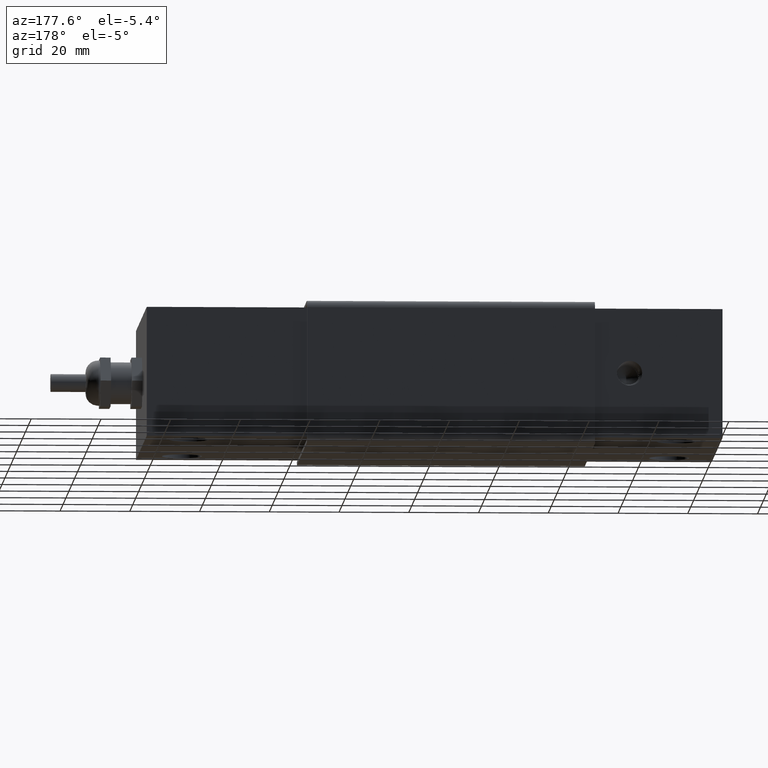
[diagram: clean part render]
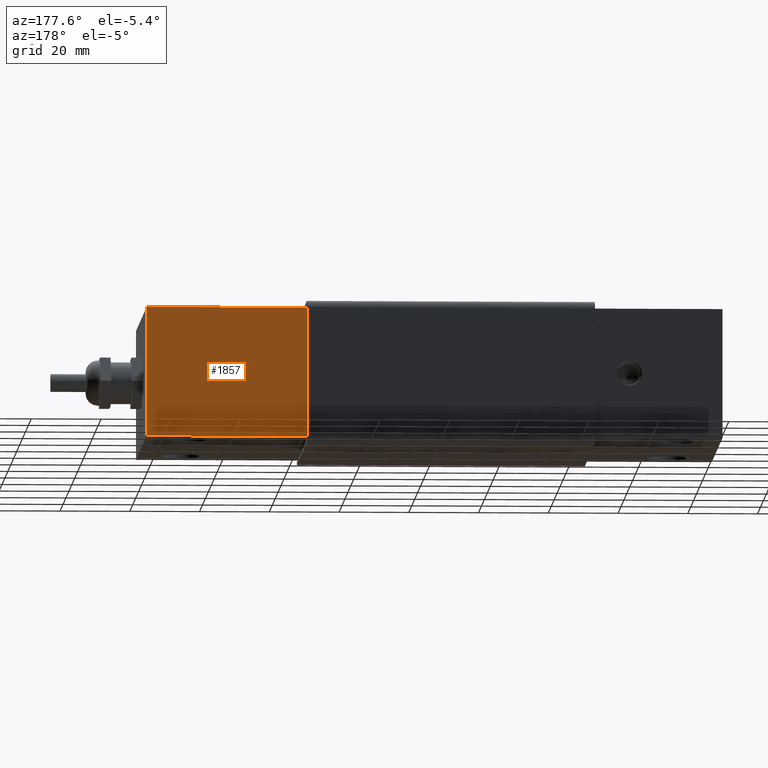
[diagram: same view with one face highlighted and labeled with its STEP entity id]
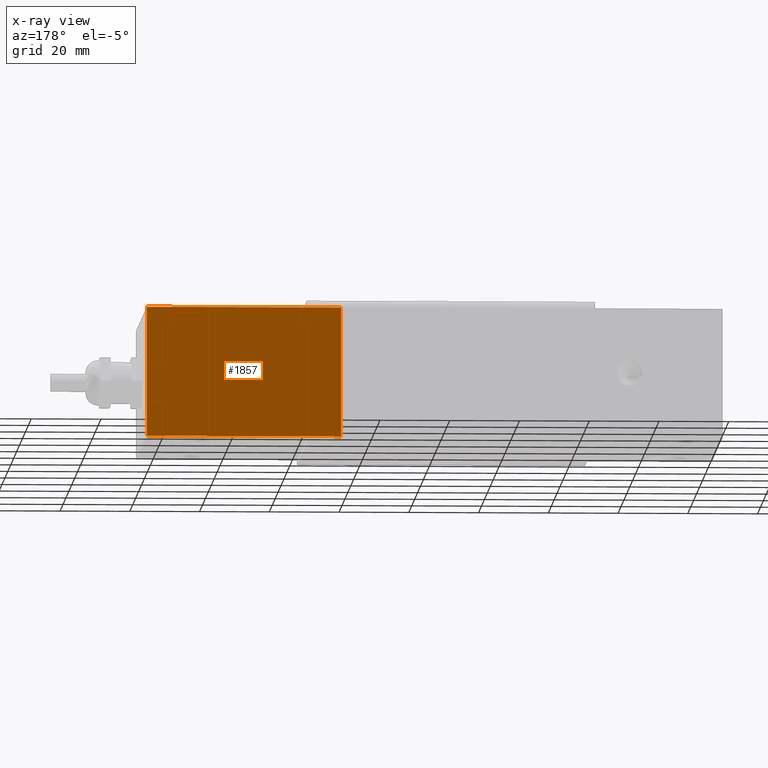
[diagram: x-ray of the same camera — body ghosted, the highlighted face saturated]
A machine part, auxiliary view. The second image highlights one B-rep face of the part: STEP entity #1857.
The next image is the same camera in x-ray: the body ghosted, the highlighted face saturated — about 0% of this face is hidden behind the body in this view.
In plain terms, the highlighted planar face has unit normal (0, 1, 0).
Its self-contained STEP definition (entity closure, byte-faithful):
#124=PLANE('',#2037);
#233=FACE_OUTER_BOUND('',#351,.T.);
#351=EDGE_LOOP('',(#1546,#1547,#1548,#1549));
#472=LINE('',#4183,#628);
#499=LINE('',#4282,#655);
#500=LINE('',#4284,#656);
#501=LINE('',#4285,#657);
#628=VECTOR('',#2347,0.393700787401575);
#655=VECTOR('',#2446,0.393700787401575);
#656=VECTOR('',#2447,0.393700787401575);
#657=VECTOR('',#2448,0.393700787401575);
#868=VERTEX_POINT('',#4179);
#870=VERTEX_POINT('',#4182);
#906=VERTEX_POINT('',#4281);
#907=VERTEX_POINT('',#4283);
#1088=EDGE_CURVE('',#870,#868,#472,.T.);
#1136=EDGE_CURVE('',#868,#906,#499,.T.);
#1137=EDGE_CURVE('',#907,#906,#500,.T.);
#1138=EDGE_CURVE('',#907,#870,#501,.T.);
#1546=ORIENTED_EDGE('',*,*,#1088,.T.);
#1547=ORIENTED_EDGE('',*,*,#1136,.T.);
#1548=ORIENTED_EDGE('',*,*,#1137,.F.);
#1549=ORIENTED_EDGE('',*,*,#1138,.T.);
#1857=ADVANCED_FACE('',(#233),#124,.T.);
#2037=AXIS2_PLACEMENT_3D('',#4280,#2444,#2445);
#2347=DIRECTION('',(0.,0.,1.));
#2444=DIRECTION('center_axis',(0.,1.,0.));
#2445=DIRECTION('ref_axis',(0.,0.,1.));
#2446=DIRECTION('',(1.,0.,0.));
#2447=DIRECTION('',(0.,0.,1.));
#2448=DIRECTION('',(-1.,0.,0.));
#4179=CARTESIAN_POINT('',(1.05520334864629,1.45,0.730000000000001));
#4182=CARTESIAN_POINT('',(1.05520334864629,1.45,-0.73));
#4183=CARTESIAN_POINT('',(1.05520334864629,1.45,0.));
#4280=CARTESIAN_POINT('Origin',(0.,1.45,-0.73));
#4281=CARTESIAN_POINT('',(3.25,1.45,0.73));
#4282=CARTESIAN_POINT('',(0.,1.45,0.73));
#4283=CARTESIAN_POINT('',(3.25,1.45,-0.73));
#4284=CARTESIAN_POINT('',(3.25,1.45,0.73));
#4285=CARTESIAN_POINT('',(0.,1.45,-0.73));